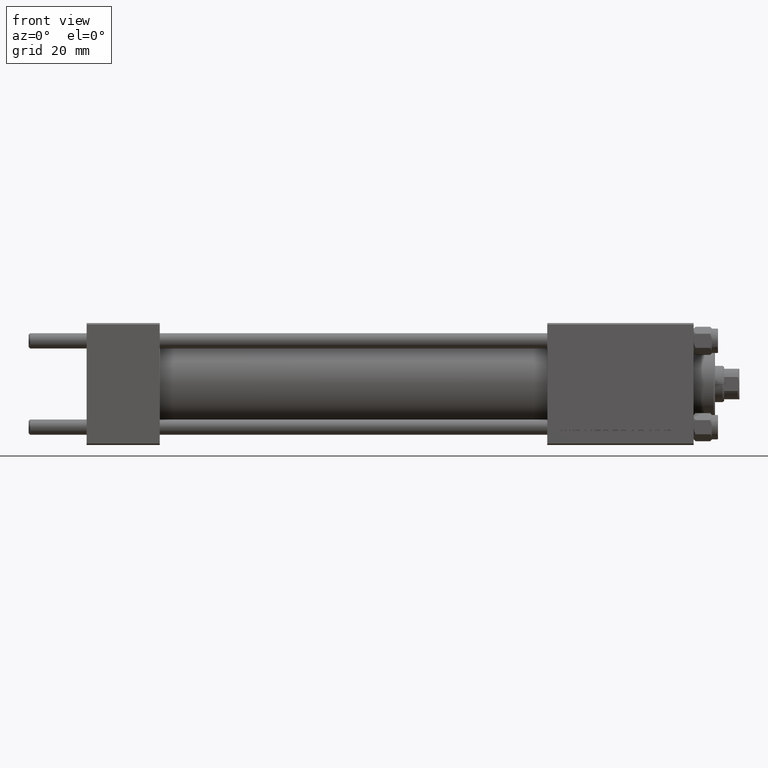
[diagram: clean part render]
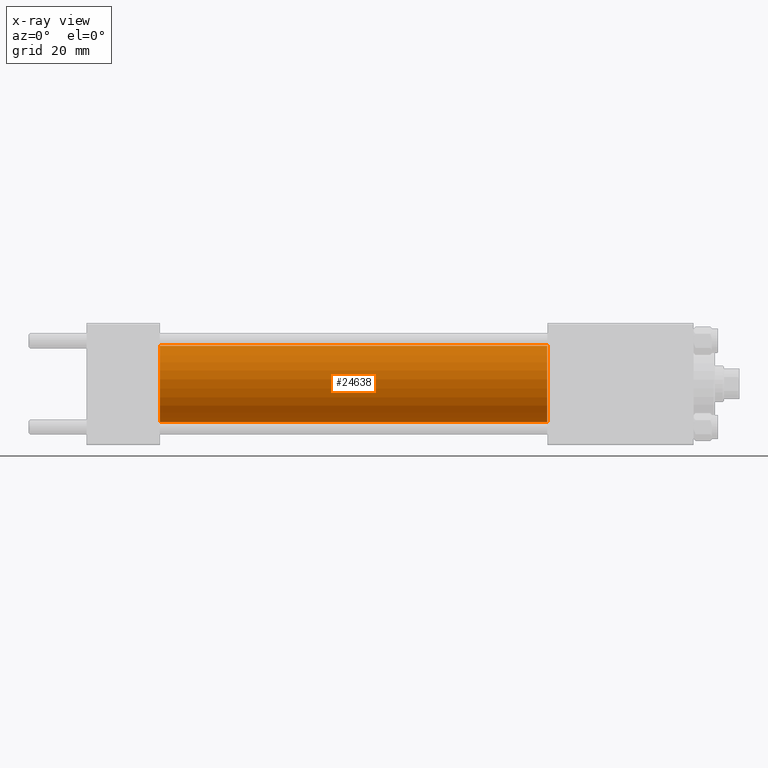
[diagram: x-ray — body ghosted, one internal face saturated and labeled with its STEP entity id]
A machine part, front view, then the same camera in x-ray: the body is ghosted and one INTERNAL B-rep face — a face not visible from any outside direction — is saturated and labeled: STEP entity #24638.
In plain terms, the highlighted cylindrical surface (partial cylindrical patch) has radius 12.5 mm, axis along (-1, -0, -0).
Its self-contained STEP definition (entity closure, byte-faithful):
#1810 = CARTESIAN_POINT ( 'NONE',  ( 151.0000000000000000, 0.000000000000000000, 12.49999999999999645 ) ) ;
#3649 = ORIENTED_EDGE ( 'NONE', *, *, #10748, .T. ) ;
#4455 = EDGE_CURVE ( 'NONE', #21656, #37926, #38141, .T. ) ;
#5946 = CARTESIAN_POINT ( 'NONE',  ( 24.00000000000000000, 1.530808498934191127E-15, -12.49999999999999645 ) ) ;
#6236 = EDGE_CURVE ( 'NONE', #17334, #41135, #6830, .T. ) ;
#6830 = CIRCLE ( 'NONE', #33363, 12.49999999999999645 ) ;
#7883 = DIRECTION ( 'NONE',  ( -1.000000000000000000, -0.000000000000000000, -0.000000000000000000 ) ) ;
#9512 = CARTESIAN_POINT ( 'NONE',  ( 24.00000000000000000, 0.000000000000000000, 0.000000000000000000 ) ) ;
#10748 = EDGE_CURVE ( 'NONE', #41135, #37926, #25561, .T. ) ;
#11444 = ORIENTED_EDGE ( 'NONE', *, *, #6236, .T. ) ;
#11866 = CARTESIAN_POINT ( 'NONE',  ( 151.0000000000000000, 0.000000000000000000, 12.49999999999999645 ) ) ;
#12015 = AXIS2_PLACEMENT_3D ( 'NONE', #15434, #7883, #45660 ) ;
#13358 = DIRECTION ( 'NONE',  ( 0.000000000000000000, 0.000000000000000000, -1.000000000000000000 ) ) ;
#15434 = CARTESIAN_POINT ( 'NONE',  ( 151.0000000000000000, 0.000000000000000000, 0.000000000000000000 ) ) ;
#15680 = FACE_OUTER_BOUND ( 'NONE', #38868, .T. ) ;
#17334 = VERTEX_POINT ( 'NONE', #11866 ) ;
#21656 = VERTEX_POINT ( 'NONE', #41386 ) ;
#22341 = DIRECTION ( 'NONE',  ( 0.000000000000000000, 0.000000000000000000, -1.000000000000000000 ) ) ;
#24638 = ADVANCED_FACE ( 'NONE', ( #15680 ), #27022, .F. ) ;
#24691 = DIRECTION ( 'NONE',  ( 1.000000000000000000, 0.000000000000000000, 0.000000000000000000 ) ) ;
#24725 = DIRECTION ( 'NONE',  ( -1.000000000000000000, -0.000000000000000000, -0.000000000000000000 ) ) ;
#25561 = LINE ( 'NONE', #25812, #27105 ) ;
#25812 = CARTESIAN_POINT ( 'NONE',  ( 151.0000000000000000, 1.530808498934191127E-15, -12.49999999999999645 ) ) ;
#26859 = AXIS2_PLACEMENT_3D ( 'NONE', #9512, #41715, #22341 ) ;
#26995 = CARTESIAN_POINT ( 'NONE',  ( 151.0000000000000000, 1.530808498934191127E-15, -12.49999999999999645 ) ) ;
#27022 = CYLINDRICAL_SURFACE ( 'NONE', #12015, 12.49999999999999645 ) ;
#27105 = VECTOR ( 'NONE', #41160, 1000.000000000000000 ) ;
#28476 = CARTESIAN_POINT ( 'NONE',  ( 151.0000000000000000, 0.000000000000000000, 0.000000000000000000 ) ) ;
#33027 = LINE ( 'NONE', #1810, #39640 ) ;
#33363 = AXIS2_PLACEMENT_3D ( 'NONE', #28476, #24691, #13358 ) ;
#37926 = VERTEX_POINT ( 'NONE', #5946 ) ;
#38141 = CIRCLE ( 'NONE', #26859, 12.49999999999999645 ) ;
#38868 = EDGE_LOOP ( 'NONE', ( #11444, #3649, #49728, #45283 ) ) ;
#39110 = EDGE_CURVE ( 'NONE', #17334, #21656, #33027, .T. ) ;
#39640 = VECTOR ( 'NONE', #24725, 1000.000000000000000 ) ;
#41135 = VERTEX_POINT ( 'NONE', #26995 ) ;
#41160 = DIRECTION ( 'NONE',  ( -1.000000000000000000, -0.000000000000000000, -0.000000000000000000 ) ) ;
#41386 = CARTESIAN_POINT ( 'NONE',  ( 24.00000000000000000, 0.000000000000000000, 12.49999999999999645 ) ) ;
#41715 = DIRECTION ( 'NONE',  ( 1.000000000000000000, 0.000000000000000000, 0.000000000000000000 ) ) ;
#45283 = ORIENTED_EDGE ( 'NONE', *, *, #39110, .F. ) ;
#45660 = DIRECTION ( 'NONE',  ( 0.000000000000000000, 0.000000000000000000, 1.000000000000000000 ) ) ;
#49728 = ORIENTED_EDGE ( 'NONE', *, *, #4455, .F. ) ;